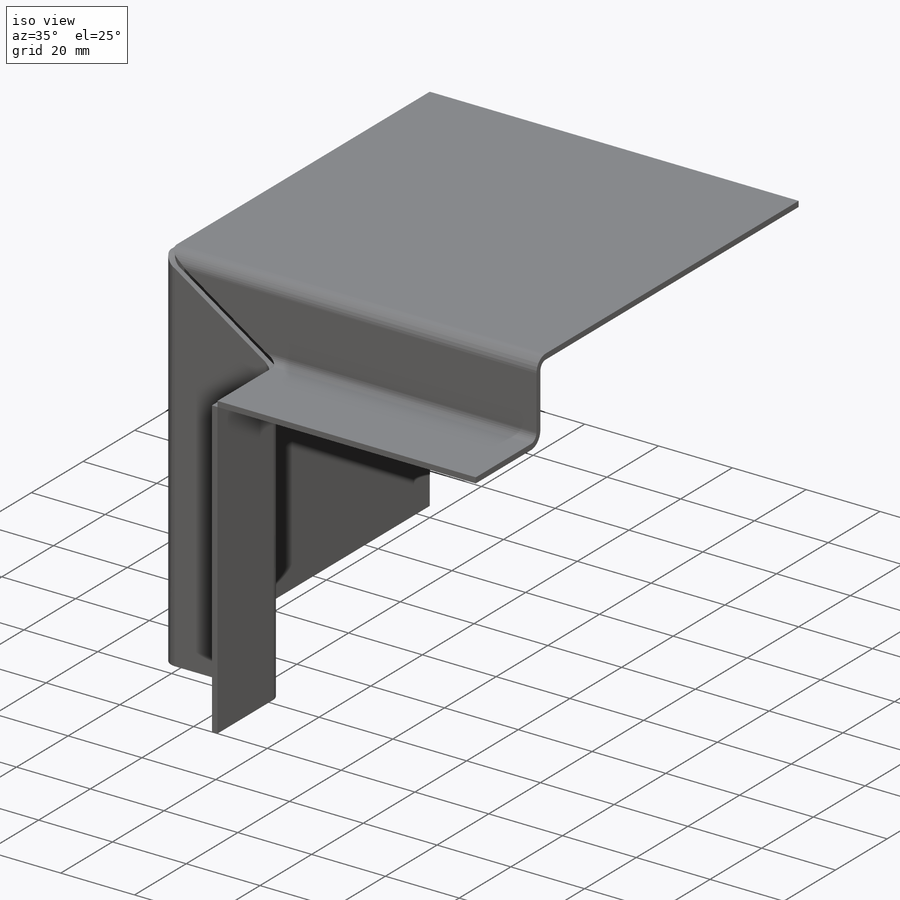
[diagram: iso view]
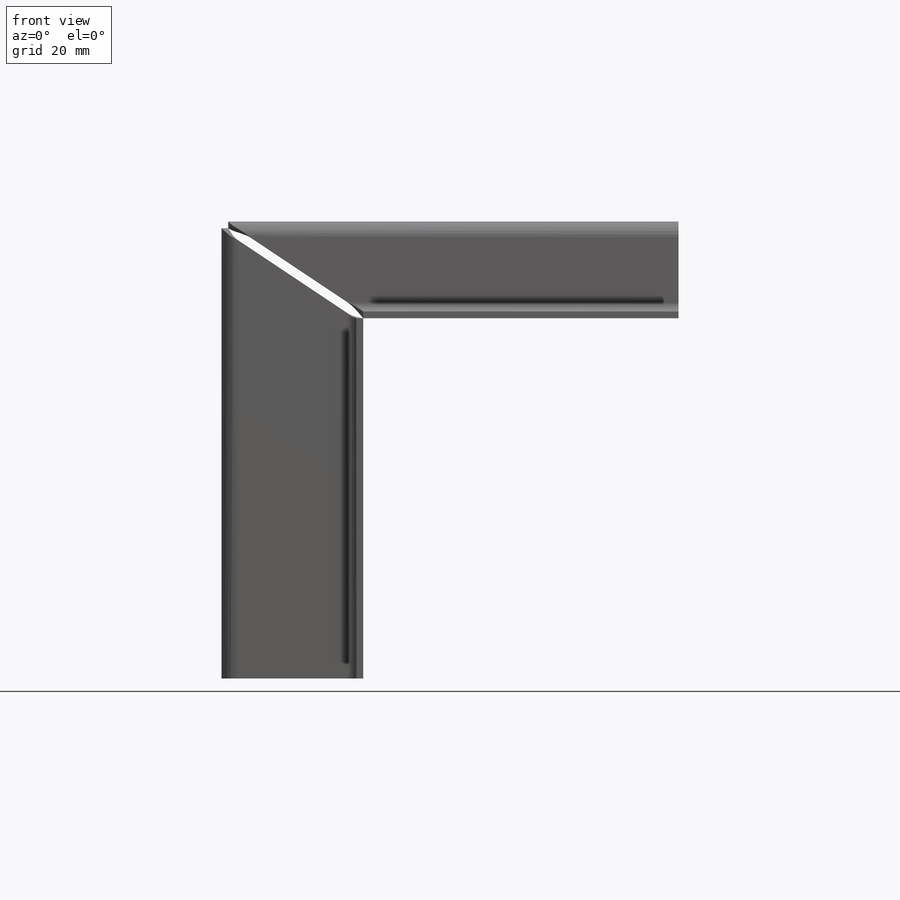
[diagram: front view]
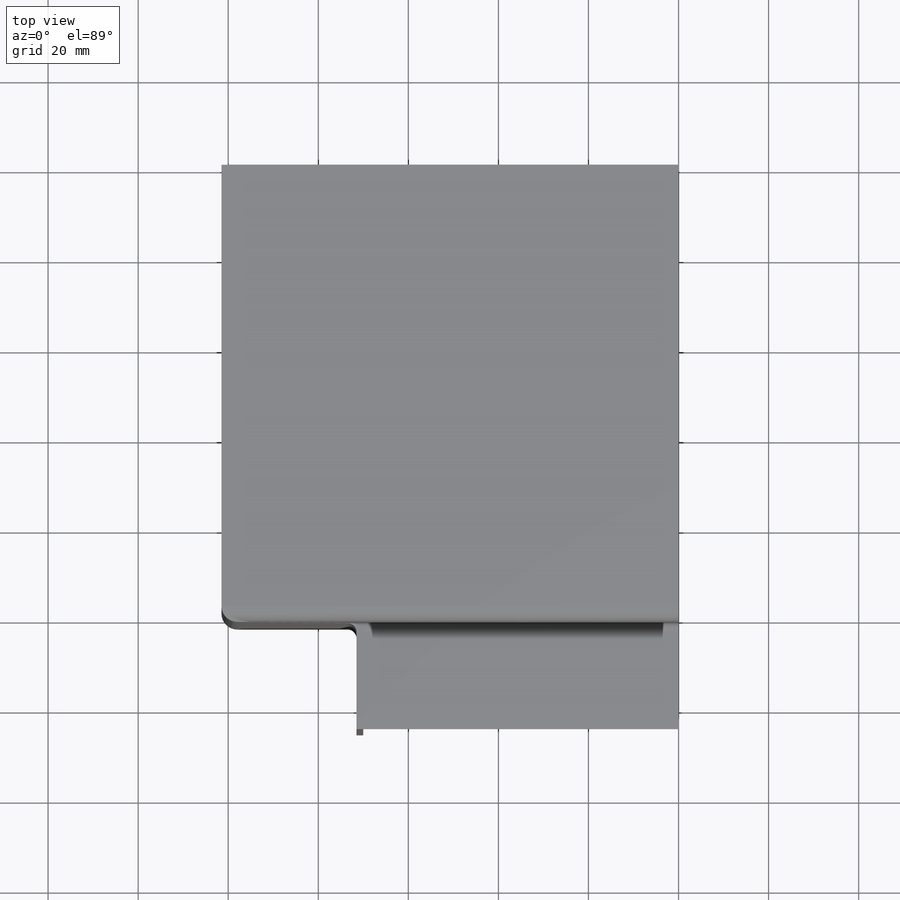
[diagram: top view]
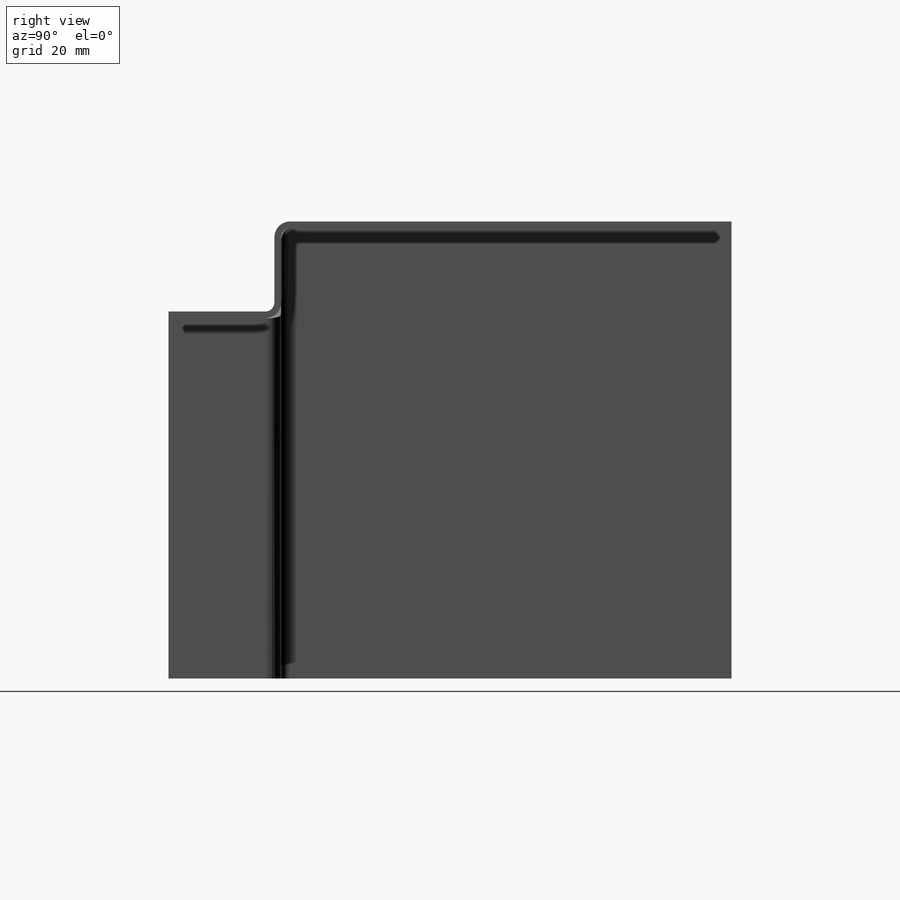
[diagram: right view]
SOLIDWORKS PART (.sldprt)
format: sldprt  version: not decoded by parser v0  size: 379,392 bytes
history: native  units: mm
features: sketch x9, plane x3, extrude x3, sheet_metal_op x2, material x1 + 2 further entries (+10 scaffold rows collapsed; 2 parser-record rows omitted)
feature tree (32):
  scaffold x10  (default folders/planes/origin — collapsed)
  material  "1.0038 (S235JRG2)"
  plane  "Ebene vorne"
  plane  "Ebene oben"
  plane  "Ebene rechts"
  sketch  "Skizze1"  dims[c1.D1=~79.042325mm c1.D2=~82.229515mm c2.D1=100.0mm c2.D2=100.0mm]
  extrude  "Aufsatz-Linear austragen1"  Depth=100mm
  sketch  "Skizze2"  dims[c1.D1=~72.624787mm c1.D2=~72.094763mm c2.D1=20.0mm c2.D2=30.0mm]
  extrude  "Aufsatz-Linear austragen2"  Depth=25mm
  sketch  "Skizze3"  dims[c1.D1=~36.055513mm c2.D1=2.0mm c2.D2=0.45 c2.D3=0.0mm c2.D6=500.0mm c3.D1=0.0mm c3.D4=90.0deg c3.D5=1.0 c3.D8=0.0mm c3.D9=0.0mm c3.Biegung-Winkel7=0.0 c4.D1=0.0mm c4.D4=90.0deg c4.D5=2.0 c4.D8=0.0mm c4.D9=0.0mm c5.D1=2.0mm]
  extrude  "Volumenkörper übernehmen3"  Depth=0 Biegung-Winkel8=0 Biegung-Winkel9=0
  sketch  "Biegung-Linien3"
  sketch  "Rahmen3"
  sheet_metal_op  "Blech6"
  "Abwicklung6"
  sketch  "Biegung-Linien4"
  sketch  "Rahmen4"
  parser-record x2  (decoder bookkeeping rows leaked as tree rows — omitted from the tree; the rows remain in map.json)
  sheet_metal_op  "Blech7"
  "Abwicklung7"
  sketch  "Biegung-Linien5"
  sketch  "Rahmen5"
decode coverage: 6 of 14 modeling features carry decoded parameters; 2 rows unclassified (native names shown)
note: ~ marks probable driven/reference dimensions
note: suppression state not decoded; provenance and decode notes live in map.json
